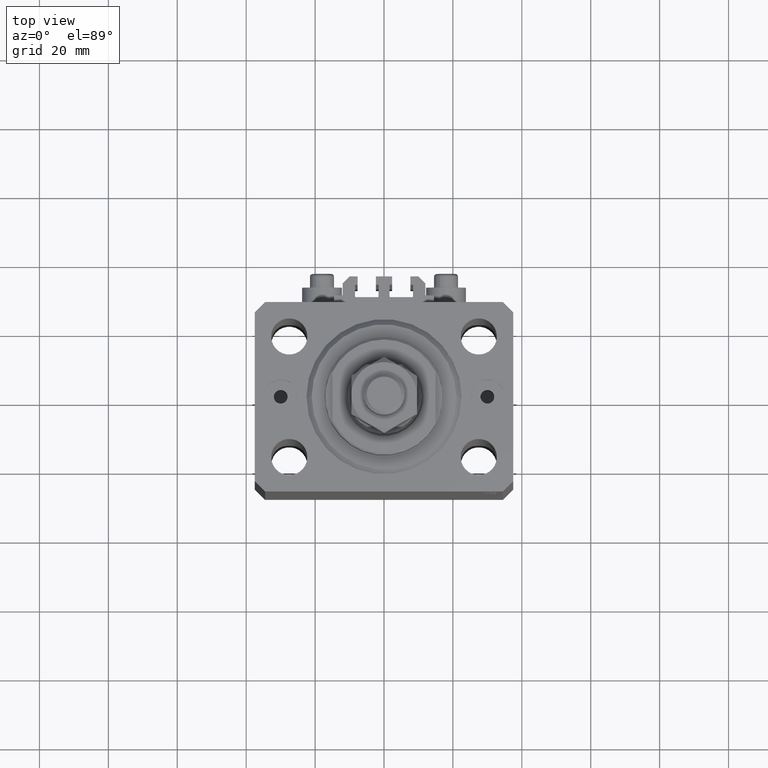
[diagram: clean part render]
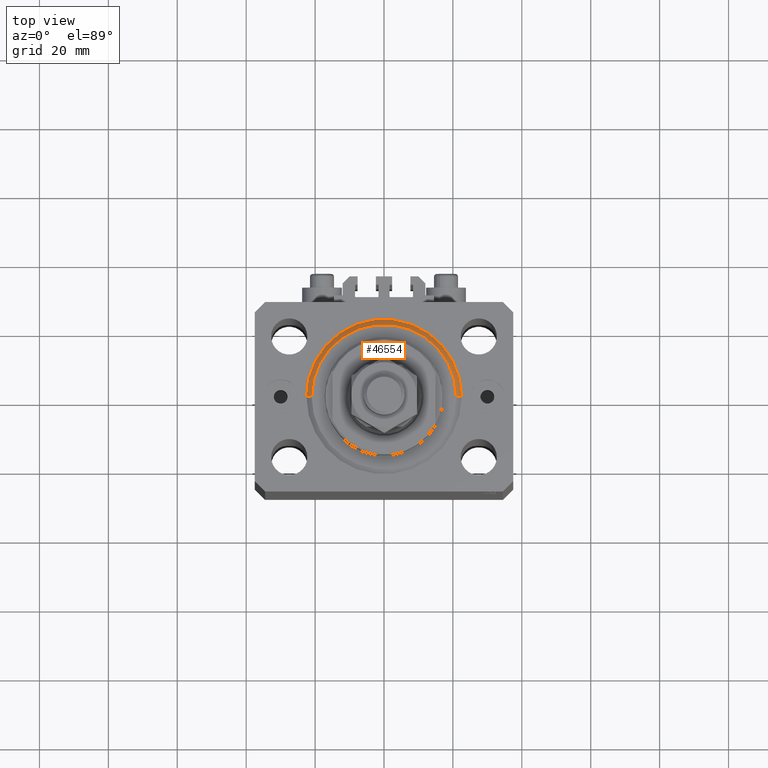
[diagram: same view with one face highlighted and labeled with its STEP entity id]
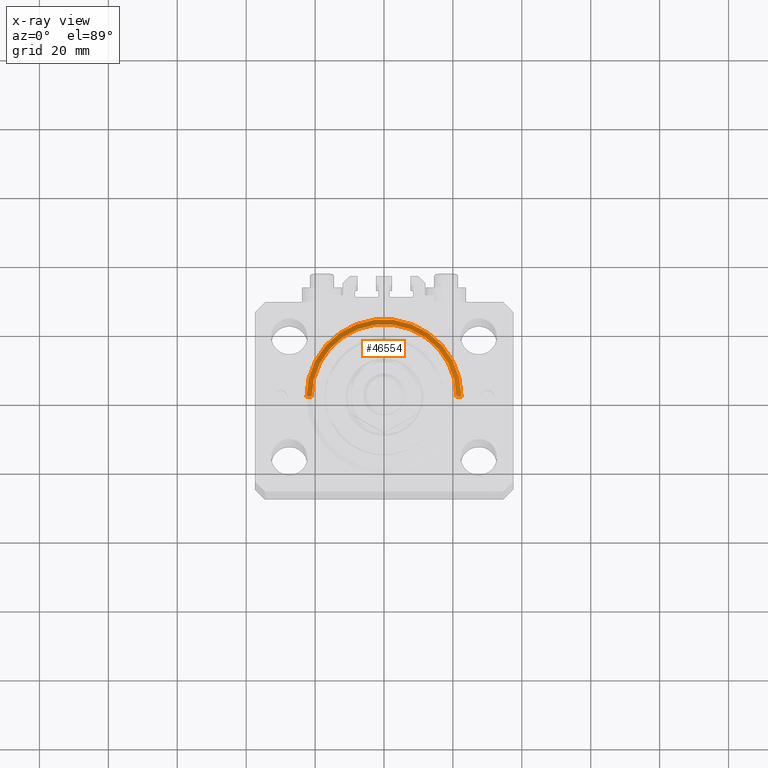
[diagram: x-ray of the same camera — body ghosted, the highlighted face saturated]
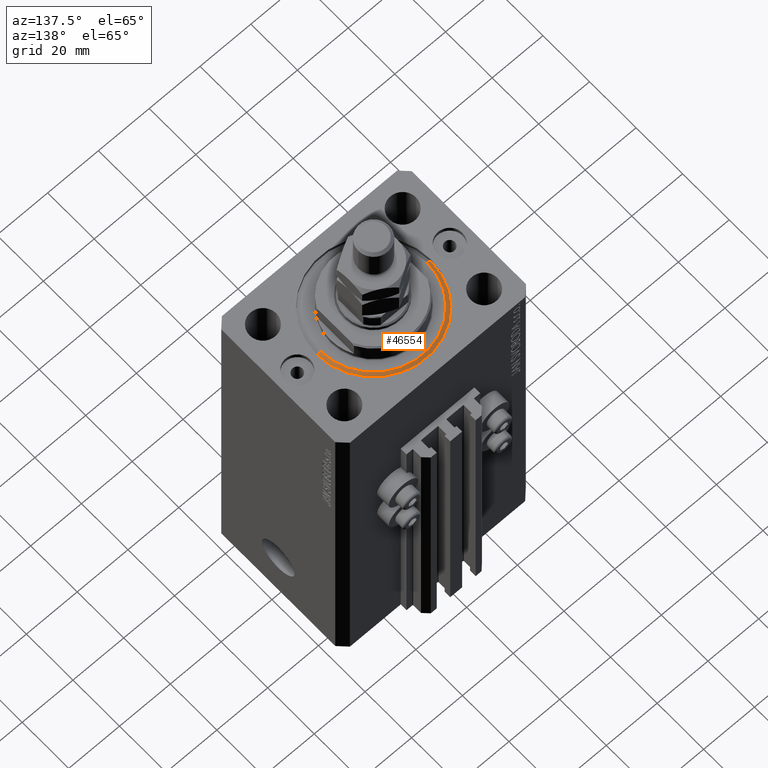
[diagram: same view with one face highlighted and labeled with its STEP entity id]
A machine part, top view. The second image highlights one B-rep face of the part: STEP entity #46554.
The next image is the same camera in x-ray: the body ghosted, the highlighted face saturated — about 0% of this face is hidden behind the body in this view.
A second angle (auxiliary view) of the same face is appended — the face is thin or edge-on in the first view.
In plain terms, the highlighted conical surface has half-angle 45 deg.
Its self-contained STEP definition (entity closure, byte-faithful):
#4 = CARTESIAN_POINT ( 'NONE',  ( -22.50000000000000355, 0.000000000000000000, 1.500000000000001332 ) ) ;
#90 = CIRCLE ( 'NONE', #18241, 22.50000000000000355 ) ;
#975 = EDGE_CURVE ( 'NONE', #35391, #2032, #27421, .T. ) ;
#2032 = VERTEX_POINT ( 'NONE', #9329 ) ;
#3899 = ORIENTED_EDGE ( 'NONE', *, *, #36142, .F. ) ;
#6953 = VECTOR ( 'NONE', #26938, 1000.000000000000114 ) ;
#7229 = CARTESIAN_POINT ( 'NONE',  ( -22.50000000000000355, 2.755455298081545172E-15, 1.500000000000001332 ) ) ;
#8658 = CARTESIAN_POINT ( 'NONE',  ( 22.50000000000000355, 0.000000000000000000, 1.500000000000001332 ) ) ;
#9329 = CARTESIAN_POINT ( 'NONE',  ( 22.50000000000000355, 2.755455298081545172E-15, 1.500000000000001332 ) ) ;
#10436 = DIRECTION ( 'NONE',  ( 1.000000000000000000, 0.000000000000000000, 0.000000000000000000 ) ) ;
#11334 = VECTOR ( 'NONE', #18602, 1000.000000000000114 ) ;
#11788 = EDGE_CURVE ( 'NONE', #20311, #35391, #31664, .T. ) ;
#14146 = CARTESIAN_POINT ( 'NONE',  ( 0.000000000000000000, 0.000000000000000000, 1.500000000000001332 ) ) ;
#15205 = CARTESIAN_POINT ( 'NONE',  ( 0.000000000000000000, 0.000000000000000000, 0.000000000000000000 ) ) ;
#16169 = CARTESIAN_POINT ( 'NONE',  ( 20.99999999999998934, 0.000000000000000000, 0.000000000000000000 ) ) ;
#18182 = DIRECTION ( 'NONE',  ( 1.000000000000000000, 0.000000000000000000, 0.000000000000000000 ) ) ;
#18216 = EDGE_CURVE ( 'NONE', #20311, #43920, #41043, .T. ) ;
#18241 = AXIS2_PLACEMENT_3D ( 'NONE', #14146, #44259, #10436 ) ;
#18602 = DIRECTION ( 'NONE',  ( -0.7071067811865500152, 8.659560562354963673E-17, 0.7071067811865451302 ) ) ;
#20311 = VERTEX_POINT ( 'NONE', #39172 ) ;
#21261 = DIRECTION ( 'NONE',  ( 1.000000000000000000, 0.000000000000000000, 0.000000000000000000 ) ) ;
#24140 = ORIENTED_EDGE ( 'NONE', *, *, #18216, .T. ) ;
#24532 = ORIENTED_EDGE ( 'NONE', *, *, #11788, .F. ) ;
#26938 = DIRECTION ( 'NONE',  ( 0.7071067811865500152, 0.000000000000000000, 0.7071067811865451302 ) ) ;
#27421 = LINE ( 'NONE', #8658, #6953 ) ;
#28653 = FACE_OUTER_BOUND ( 'NONE', #31879, .T. ) ;
#30721 = AXIS2_PLACEMENT_3D ( 'NONE', #43711, #47878, #21261 ) ;
#31664 = CIRCLE ( 'NONE', #37980, 20.99999999999998934 ) ;
#31879 = EDGE_LOOP ( 'NONE', ( #24532, #24140, #3899, #42515 ) ) ;
#33951 = DIRECTION ( 'NONE',  ( -0.000000000000000000, -0.000000000000000000, -1.000000000000000000 ) ) ;
#35391 = VERTEX_POINT ( 'NONE', #16169 ) ;
#36142 = EDGE_CURVE ( 'NONE', #2032, #43920, #90, .T. ) ;
#37980 = AXIS2_PLACEMENT_3D ( 'NONE', #15205, #33951, #18182 ) ;
#39172 = CARTESIAN_POINT ( 'NONE',  ( -20.99999999999998934, 2.663606788145492628E-15, 0.000000000000000000 ) ) ;
#41043 = LINE ( 'NONE', #7229, #11334 ) ;
#42515 = ORIENTED_EDGE ( 'NONE', *, *, #975, .F. ) ;
#43711 = CARTESIAN_POINT ( 'NONE',  ( 0.000000000000000000, 0.000000000000000000, 1.500000000000001332 ) ) ;
#43920 = VERTEX_POINT ( 'NONE', #4 ) ;
#44259 = DIRECTION ( 'NONE',  ( -0.000000000000000000, -0.000000000000000000, 1.000000000000000000 ) ) ;
#45696 = CONICAL_SURFACE ( 'NONE', #30721, 22.50000000000000355, 0.7853981633974517207 ) ;
#46554 = ADVANCED_FACE ( 'NONE', ( #28653 ), #45696, .T. ) ;
#47878 = DIRECTION ( 'NONE',  ( -0.000000000000000000, -0.000000000000000000, 1.000000000000000000 ) ) ;